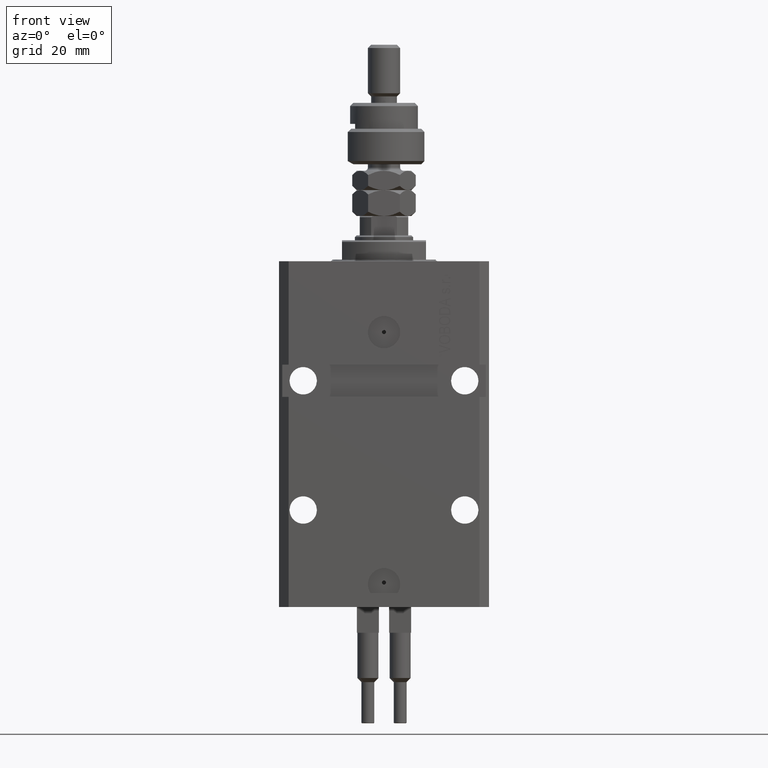
[diagram: clean part render]
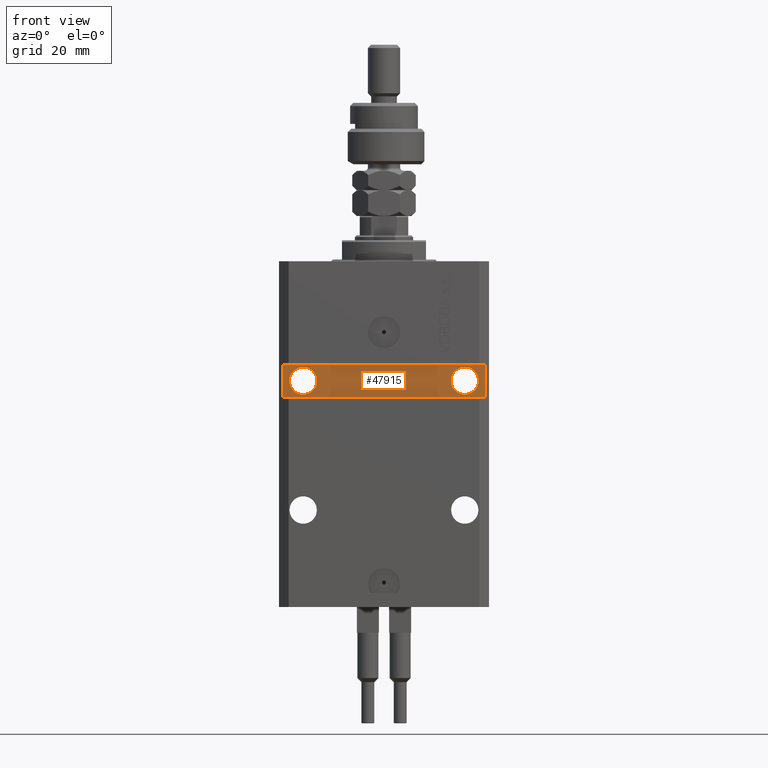
[diagram: same view with one face highlighted and labeled with its STEP entity id]
A machine part, front view. The second image highlights one B-rep face of the part: STEP entity #47915.
In plain terms, the highlighted planar face has unit normal (0, -1, 0).
Its self-contained STEP definition (entity closure, byte-faithful):
#239 = EDGE_CURVE ( 'NONE', #17317, #19863, #25388, .T. ) ;
#1579 = AXIS2_PLACEMENT_3D ( 'NONE', #3524, #31533, #39598 ) ;
#1879 = ORIENTED_EDGE ( 'NONE', *, *, #35228, .F. ) ;
#2207 = VERTEX_POINT ( 'NONE', #5427 ) ;
#2316 = CARTESIAN_POINT ( 'NONE',  ( -32.49999999999650413, -20.49999999999949907, -41.99999999999999289 ) ) ;
#2650 = EDGE_CURVE ( 'NONE', #19356, #38572, #47724, .T. ) ;
#2712 = EDGE_CURVE ( 'NONE', #17317, #20340, #11779, .T. ) ;
#2831 = AXIS2_PLACEMENT_3D ( 'NONE', #47119, #7904, #23455 ) ;
#3198 = AXIS2_PLACEMENT_3D ( 'NONE', #51290, #11806, #15706 ) ;
#3524 = CARTESIAN_POINT ( 'NONE',  ( 25.00000000000000711, -20.49999999999949551, -36.99999999999999289 ) ) ;
#3759 = DIRECTION ( 'NONE',  ( 1.000000000000000000, 0.000000000000000000, 0.000000000000000000 ) ) ;
#5427 = CARTESIAN_POINT ( 'NONE',  ( 29.24999999998905764, -20.49999999999949551, -36.99999999999999289 ) ) ;
#5841 = EDGE_LOOP ( 'NONE', ( #41968, #36283, #20318, #16174 ) ) ;
#7084 = CARTESIAN_POINT ( 'NONE',  ( 31.49999999999651124, -20.49999999999949551, -107.0000000000000000 ) ) ;
#7904 = DIRECTION ( 'NONE',  ( 1.394545208792185644E-16, -1.000000000000000000, 1.232595164407830946E-32 ) ) ;
#8944 = ORIENTED_EDGE ( 'NONE', *, *, #10223, .F. ) ;
#9495 = CARTESIAN_POINT ( 'NONE',  ( -31.49999999999650413, -20.49999999999950262, -32.00000000000000000 ) ) ;
#10049 = ORIENTED_EDGE ( 'NONE', *, *, #22574, .F. ) ;
#10223 = EDGE_CURVE ( 'NONE', #38572, #19356, #34674, .T. ) ;
#10496 = CARTESIAN_POINT ( 'NONE',  ( -31.49999999999650413, -20.49999999999949907, -41.99999999999999289 ) ) ;
#11779 = LINE ( 'NONE', #42697, #22015 ) ;
#11806 = DIRECTION ( 'NONE',  ( 1.101411730780568590E-16, -1.000000000000000000, 0.000000000000000000 ) ) ;
#12254 = FACE_BOUND ( 'NONE', #14458, .T. ) ;
#13810 = EDGE_CURVE ( 'NONE', #21146, #20340, #48918, .T. ) ;
#14042 = CARTESIAN_POINT ( 'NONE',  ( 2.166708070385810581E-15, -20.49999999999949907, 0.000000000000000000 ) ) ;
#14458 = EDGE_LOOP ( 'NONE', ( #10049, #1879 ) ) ;
#15370 = AXIS2_PLACEMENT_3D ( 'NONE', #47383, #27083, #3759 ) ;
#15706 = DIRECTION ( 'NONE',  ( 1.000000000000000000, 0.000000000000000000, 0.000000000000000000 ) ) ;
#16174 = ORIENTED_EDGE ( 'NONE', *, *, #43448, .F. ) ;
#17047 = EDGE_LOOP ( 'NONE', ( #8944, #29945 ) ) ;
#17317 = VERTEX_POINT ( 'NONE', #10496 ) ;
#18100 = DIRECTION ( 'NONE',  ( 1.000000000000000000, 1.067522139062765303E-16, 1.067522139062765303E-16 ) ) ;
#19133 = VECTOR ( 'NONE', #22894, 1000.000000000000000 ) ;
#19356 = VERTEX_POINT ( 'NONE', #30540 ) ;
#19863 = VERTEX_POINT ( 'NONE', #42381 ) ;
#20318 = ORIENTED_EDGE ( 'NONE', *, *, #239, .T. ) ;
#20340 = VERTEX_POINT ( 'NONE', #9495 ) ;
#21146 = VERTEX_POINT ( 'NONE', #46411 ) ;
#22015 = VECTOR ( 'NONE', #35675, 1000.000000000000000 ) ;
#22574 = EDGE_CURVE ( 'NONE', #2207, #45373, #47605, .T. ) ;
#22894 = DIRECTION ( 'NONE',  ( 0.000000000000000000, 0.000000000000000000, -1.000000000000000000 ) ) ;
#23455 = DIRECTION ( 'NONE',  ( 1.000000000000000000, 0.000000000000000000, 0.000000000000000000 ) ) ;
#25388 = LINE ( 'NONE', #2316, #30192 ) ;
#27083 = DIRECTION ( 'NONE',  ( 1.101411730780568590E-16, -1.000000000000000000, 0.000000000000000000 ) ) ;
#29876 = DIRECTION ( 'NONE',  ( 1.000000000000000000, 1.067522139062765303E-16, 0.000000000000000000 ) ) ;
#29945 = ORIENTED_EDGE ( 'NONE', *, *, #2650, .F. ) ;
#30192 = VECTOR ( 'NONE', #18100, 1000.000000000000000 ) ;
#30375 = FACE_OUTER_BOUND ( 'NONE', #5841, .T. ) ;
#30540 = CARTESIAN_POINT ( 'NONE',  ( -29.24999999999377920, -20.49999999999950262, -37.00000000000000000 ) ) ;
#31533 = DIRECTION ( 'NONE',  ( 1.394545208792185644E-16, -1.000000000000000000, 1.232595164407830946E-32 ) ) ;
#34674 = CIRCLE ( 'NONE', #3198, 4.249999999993782751 ) ;
#35099 = LINE ( 'NONE', #7084, #19133 ) ;
#35228 = EDGE_CURVE ( 'NONE', #45373, #2207, #49630, .T. ) ;
#35675 = DIRECTION ( 'NONE',  ( 0.000000000000000000, 0.000000000000000000, 1.000000000000000000 ) ) ;
#36283 = ORIENTED_EDGE ( 'NONE', *, *, #2712, .F. ) ;
#37178 = DIRECTION ( 'NONE',  ( 1.067522139062765303E-16, -1.000000000000000000, 0.000000000000000000 ) ) ;
#38197 = AXIS2_PLACEMENT_3D ( 'NONE', #14042, #37178, #29876 ) ;
#38572 = VERTEX_POINT ( 'NONE', #44512 ) ;
#39598 = DIRECTION ( 'NONE',  ( 1.000000000000000000, 0.000000000000000000, 0.000000000000000000 ) ) ;
#41968 = ORIENTED_EDGE ( 'NONE', *, *, #13810, .T. ) ;
#42381 = CARTESIAN_POINT ( 'NONE',  ( 31.49999999999650413, -20.49999999999949196, -41.99999999999998579 ) ) ;
#42697 = CARTESIAN_POINT ( 'NONE',  ( -31.49999999999650413, -20.49999999999950262, -107.0000000000000000 ) ) ;
#42737 = CARTESIAN_POINT ( 'NONE',  ( 20.75000000001095657, -20.49999999999949551, -36.99999999999999289 ) ) ;
#43448 = EDGE_CURVE ( 'NONE', #21146, #19863, #35099, .T. ) ;
#43958 = FACE_BOUND ( 'NONE', #17047, .T. ) ;
#44512 = CARTESIAN_POINT ( 'NONE',  ( -20.75000000000621014, -20.49999999999950262, -37.00000000000000000 ) ) ;
#44670 = VECTOR ( 'NONE', #48661, 1000.000000000000000 ) ;
#45373 = VERTEX_POINT ( 'NONE', #42737 ) ;
#46411 = CARTESIAN_POINT ( 'NONE',  ( 31.49999999999651124, -20.49999999999949196, -32.00000000000000711 ) ) ;
#47119 = CARTESIAN_POINT ( 'NONE',  ( 25.00000000000000711, -20.49999999999949551, -36.99999999999999289 ) ) ;
#47383 = CARTESIAN_POINT ( 'NONE',  ( -24.99999999999999289, -20.49999999999950262, -37.00000000000000000 ) ) ;
#47605 = CIRCLE ( 'NONE', #2831, 4.249999999989050536 ) ;
#47724 = CIRCLE ( 'NONE', #15370, 4.249999999993782751 ) ;
#47915 = ADVANCED_FACE ( 'NONE', ( #12254, #43958, #30375 ), #50128, .T. ) ;
#48661 = DIRECTION ( 'NONE',  ( -1.000000000000000000, -1.067522139062765303E-16, 1.067522139062765303E-16 ) ) ;
#48918 = LINE ( 'NONE', #49430, #44670 ) ;
#49430 = CARTESIAN_POINT ( 'NONE',  ( 32.49999999999650413, -20.49999999999949196, -32.00000000000000711 ) ) ;
#49630 = CIRCLE ( 'NONE', #1579, 4.249999999989050536 ) ;
#50128 = PLANE ( 'NONE',  #38197 ) ;
#51290 = CARTESIAN_POINT ( 'NONE',  ( -24.99999999999999289, -20.49999999999950262, -37.00000000000000000 ) ) ;